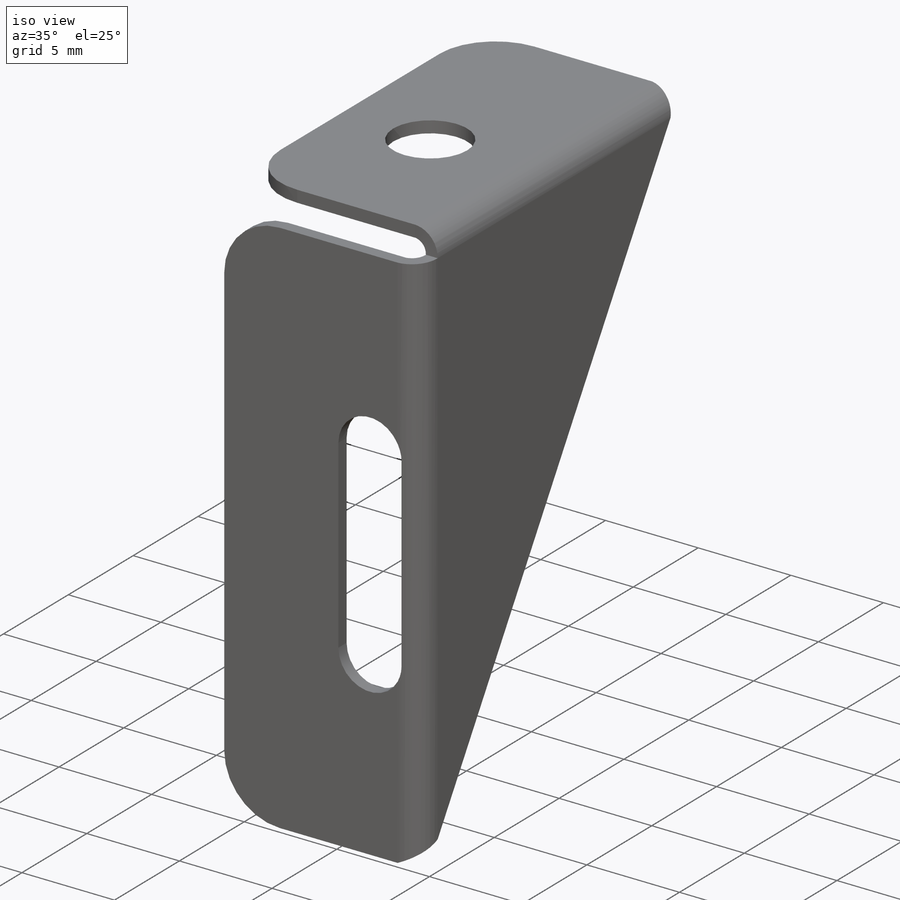
[diagram: iso view]
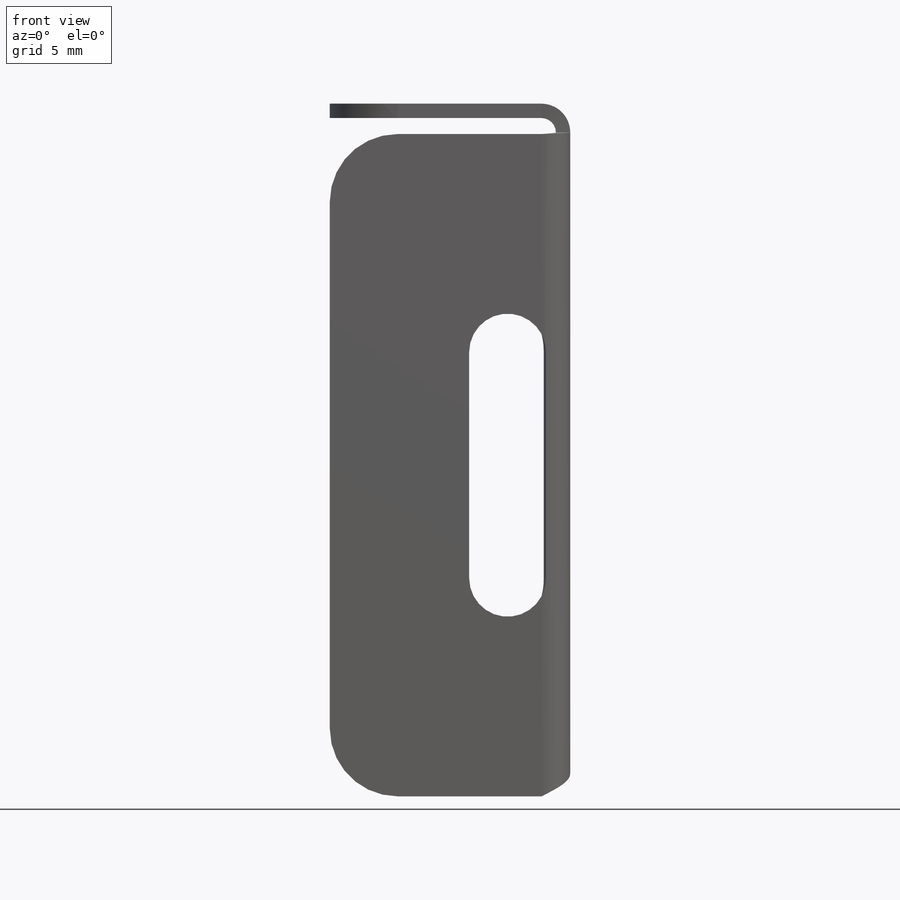
[diagram: front view]
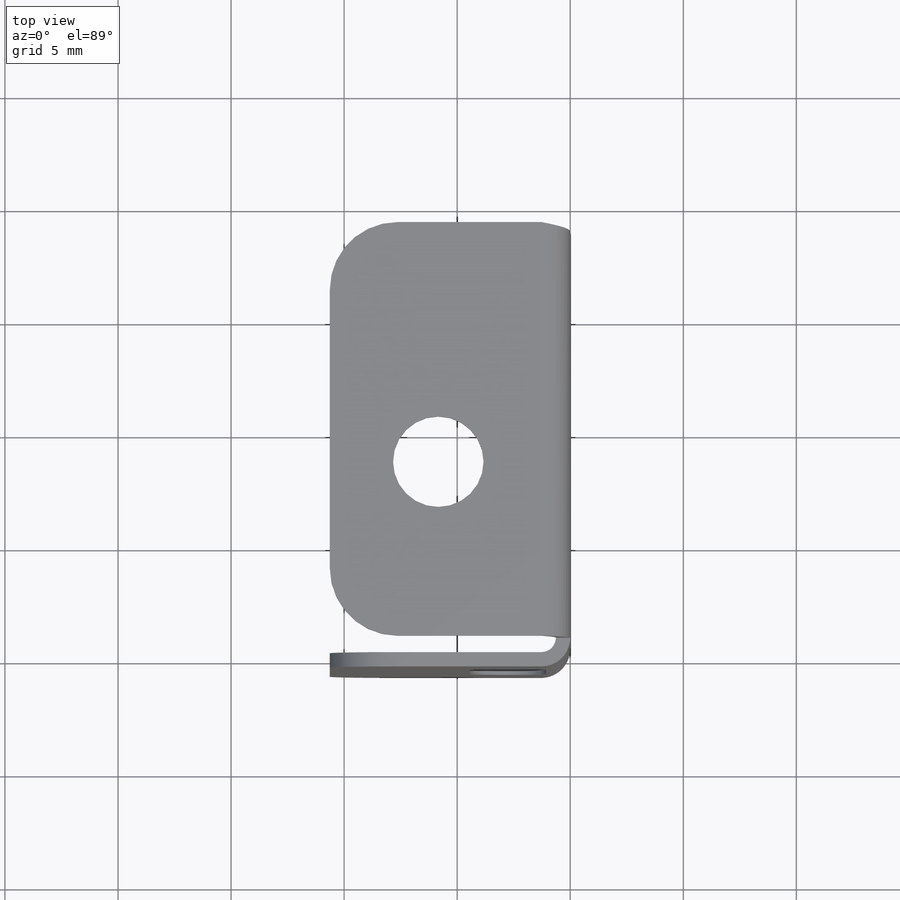
[diagram: top view]
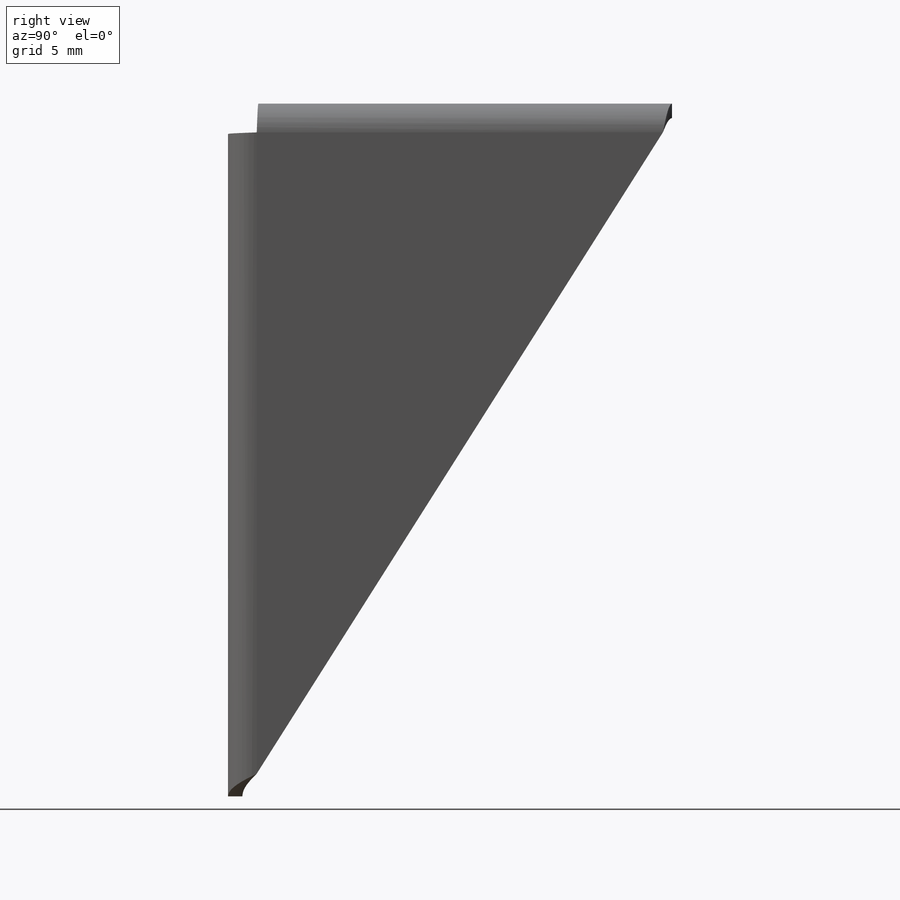
[diagram: right view]
SOLIDWORKS PART (.sldprt)
format: sldprt  version: not decoded by parser v0  size: 253,952 bytes
history: native  units: mm
features: sketch x7, sheet_metal_op x3, cut_extrude x2, material x1, fillet x1 + 2 further entries (+11 scaffold rows collapsed; 1 parser-record rows omitted)
feature tree (28):
  scaffold x11  (default folders/planes/origin — collapsed)
  material  "Material <not specified>"
  sketch  "Sketch1"  dims[D1=19.0mm D2=30.0mm]
  sheet_metal_op  "Sheet-Metal1"
  sheet_metal_op  "Base-Flange1"
  sketch  "Sketch11"
  sketch  "Sketch12"  dims[D1=0.635mm D4=90.0deg D5=1.0 D8=0.3175mm D9=0.3175mm]
  sheet_metal_op  "EdgeBend2"
  sketch  "Sketch13"  dims[D1=1.7mm D2=10.0mm D3=1.5mm]
  cut_extrude  "Cut-Extrude1"  Depth=10mm
  fillet  "Fillet1"  Radius=3mm
  sketch  "Sketch14"  dims[D3=4.0mm D1=10.6mm D2=4.8mm]
  cut_extrude  "Cut-Extrude2"  Depth=10mm
  "Flat-Pattern1"
  sketch  "Bend-Lines1"
  sketch  "Bounding-Box1"
  "Flatten-<EdgeBend2>1"
  parser-record x1  (decoder bookkeeping rows leaked as tree rows — omitted from the tree; the rows remain in map.json)
decode coverage: 7 of 13 modeling features carry decoded parameters; 2 rows unclassified (native names shown)
note: suppression state not decoded; provenance and decode notes live in map.json
